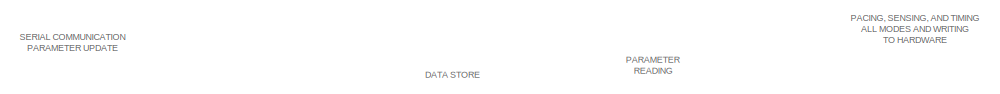
[diagram: root canvas - part 1/6, top right region]
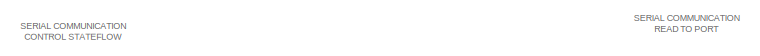
[diagram: root canvas - part 2/6, top left region]
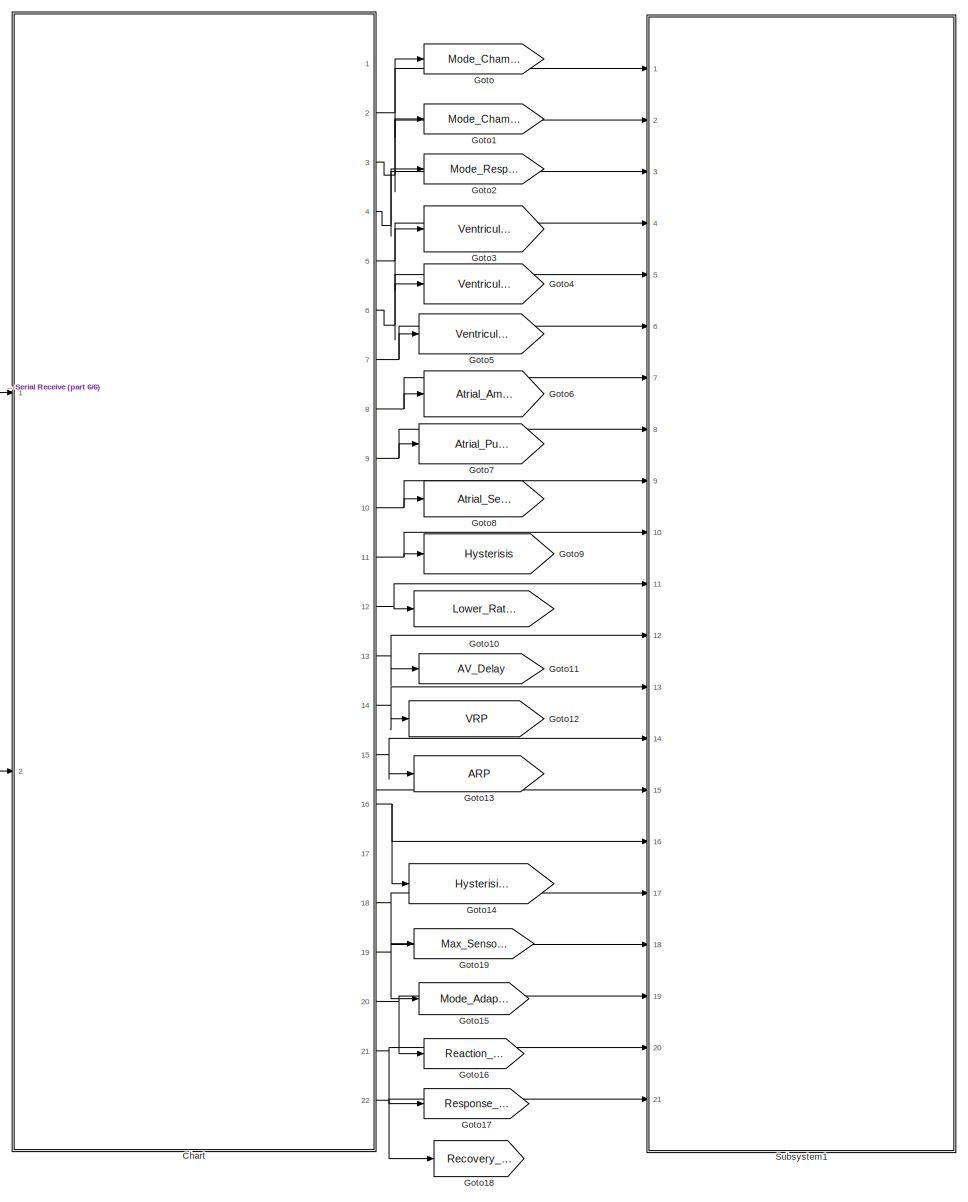
[diagram: root canvas - part 3/6, left side, full height]
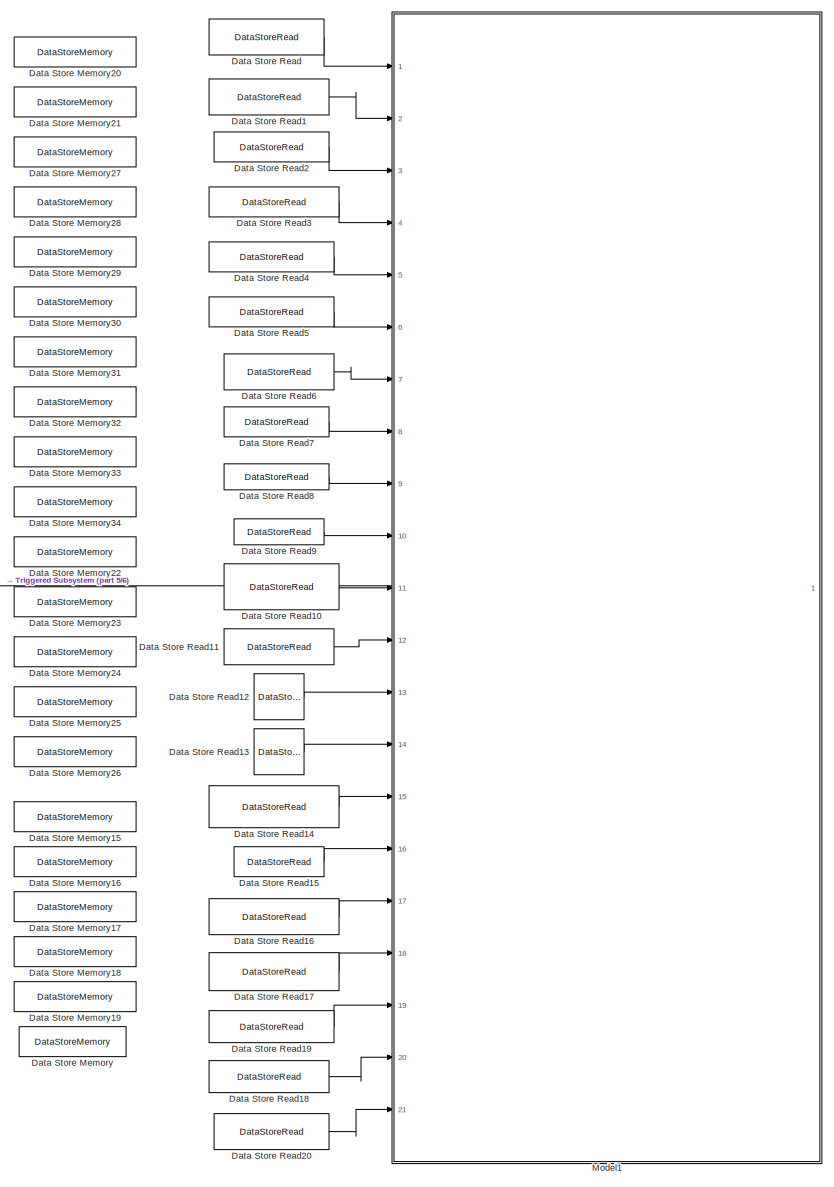
[diagram: root canvas - part 4/6, right side, full height]
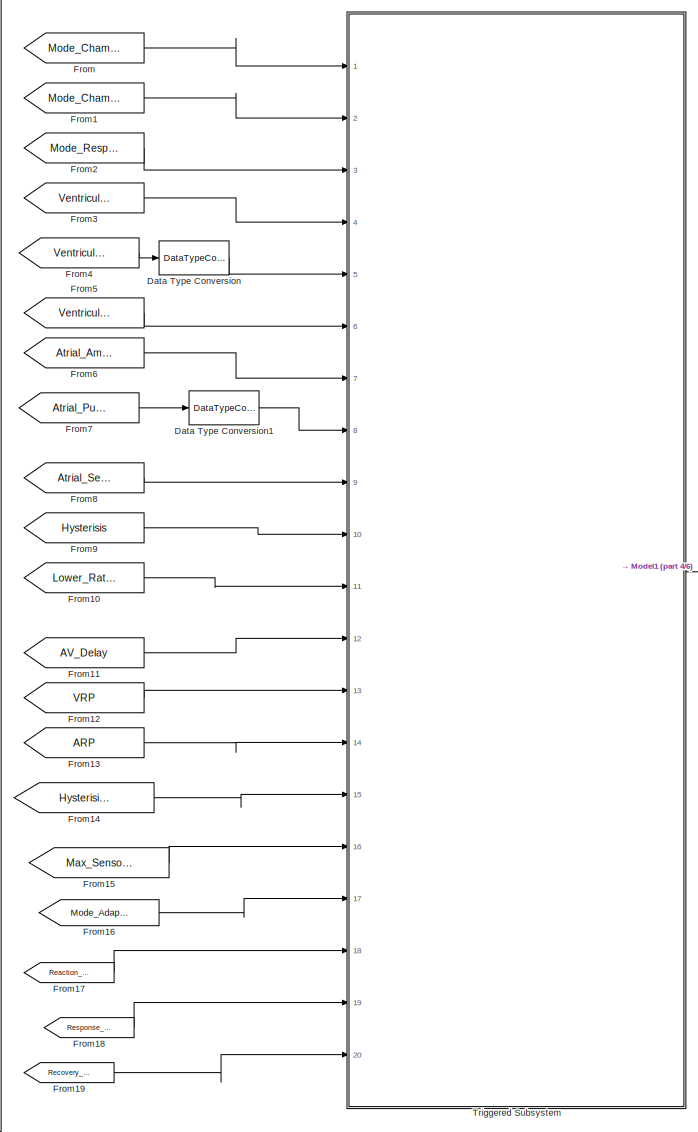
[diagram: root canvas - part 5/6, center side, full height]
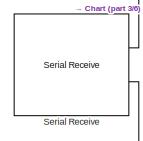
[diagram: root canvas - part 6/6, middle left region]
MODEL slx_df2ec60de8db
KIND model
CONFIG AbsTol = auto
CONFIG EnableMultiTasking = on
CONFIG FixedStep = 1e-3
CONFIG MaxStep = auto
CONFIG MinStep = auto
CONFIG RelTol = 1e-3
CONFIG SampleTimeConstraint = Unconstrained
CONFIG Solver = FixedStepAuto
CONFIG SolverName = FixedStepAuto
CONFIG StartTime = 0.0
CONFIG StopTime = inf
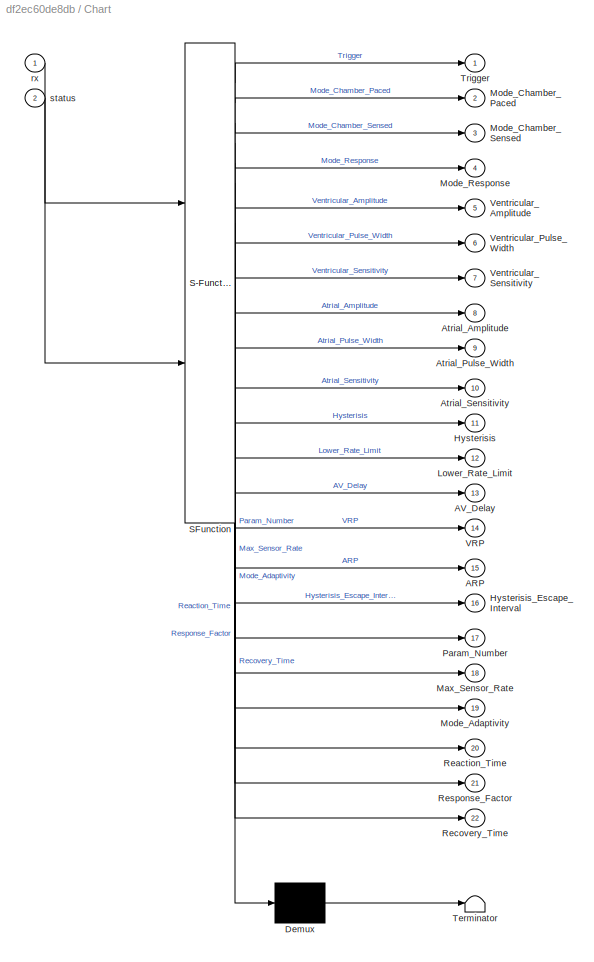
BLOCK [SubSystem] Chart
  ErrorFcn = Stateflow.Translate.translate
  PermitHierarchicalResolution = ExplicitOnly
  PortSchema = {"entries":[{"content":{"sides":[{"content":{"connectorIds":["In1","In2"]},"type":"ConnectorPlacement.EquallySpacedRectSide","uuid":"5d6148fe-63ad-4e41-a469-0ccea700ff5c"},{"content":{"connectorIds":["Out2","Out3","Out4","Out5","Out6","Out7","Out8","Out9","Out10","Out11","Out12","Out13","Out14","Out15","Out17","Out16","Out18","Out19","Out20","Out21","Out22"],"side":"RIGHT"},"type":"ConnectorPlacem...<+407ch>
  Ports = [2, 22]
  RequestExecContextInheritance = off
  SFBlockType = Chart
  TreatAsAtomicUnit = on
BLOCK [Demux] Chart/ Demux 
  Outputs = 1
  Ports = [1, 1]
BLOCK [S-Function] Chart/ SFunction 
  EnableBusSupport = on
  FunctionName = sf_sfun
  PortCounts = [2 23]
  Ports = [2, 23]
  SFcnIsStateOwnerBlock = off
  SFunctionDeploymentMode = off
  Tag = Stateflow S-Function 8
BLOCK [Terminator] Chart/ Terminator 
BLOCK [Outport] Chart/ARP
  Port = 15
BLOCK [Outport] Chart/AV_Delay
  Port = 13
BLOCK [Outport] Chart/Atrial_Amplitude
  Port = 8
BLOCK [Outport] Chart/Atrial_Pulse_Width
  Port = 9
BLOCK [Outport] Chart/Atrial_Sensitivity
  Port = 10
BLOCK [Outport] Chart/Hysterisis
  Port = 11
BLOCK [Outport] Chart/Hysterisis_Escape_Interval
  Port = 16
BLOCK [Outport] Chart/Lower_Rate_Limit
  Port = 12
BLOCK [Outport] Chart/Max_Sensor_Rate
  Port = 18
BLOCK [Outport] Chart/Mode_Adaptivity
  Port = 19
BLOCK [Outport] Chart/Mode_Chamber_Paced
  Port = 2
BLOCK [Outport] Chart/Mode_Chamber_Sensed
  Port = 3
BLOCK [Outport] Chart/Mode_Response
  Port = 4
BLOCK [Outport] Chart/Param_Number
  Port = 17
BLOCK [Outport] Chart/Reaction_Time
  Port = 20
BLOCK [Outport] Chart/Recovery_Time
  Port = 22
BLOCK [Outport] Chart/Response_Factor
  Port = 21
BLOCK [Outport] Chart/Trigger
BLOCK [Outport] Chart/VRP
  Port = 14
BLOCK [Outport] Chart/Ventricular_Amplitude
  Port = 5
BLOCK [Outport] Chart/Ventricular_Pulse_Width
  Port = 6
BLOCK [Outport] Chart/Ventricular_Sensitivity
  Port = 7
BLOCK [Inport] Chart/rx
BLOCK [Inport] Chart/status
  Port = 2
BLOCK [DataStoreMemory] Data Store Memory
  DataStoreName = Smoothed_Acceleration
  ReadBeforeWriteMsg = warning
  ShowAdditionalParam = off
  WriteAfterReadMsg = warning
  WriteAfterWriteMsg = warning
BLOCK [DataStoreMemory] Data Store Memory15
  DataStoreName = Max_Sensor_Rate
  ReadBeforeWriteMsg = warning
  ShowAdditionalParam = off
  WriteAfterReadMsg = warning
  WriteAfterWriteMsg = warning
BLOCK [DataStoreMemory] Data Store Memory16
  DataStoreName = Mode_Adaptivity
  ReadBeforeWriteMsg = warning
  ShowAdditionalParam = off
  WriteAfterReadMsg = warning
  WriteAfterWriteMsg = warning
BLOCK [DataStoreMemory] Data Store Memory17
  DataStoreName = Reaction_Time
  ReadBeforeWriteMsg = warning
  ShowAdditionalParam = off
  WriteAfterReadMsg = warning
  WriteAfterWriteMsg = warning
BLOCK [DataStoreMemory] Data Store Memory18
  DataStoreName = Response_Factor
  ReadBeforeWriteMsg = warning
  ShowAdditionalParam = off
  WriteAfterReadMsg = warning
  WriteAfterWriteMsg = warning
BLOCK [DataStoreMemory] Data Store Memory19
  DataStoreName = Recovery_Time
  ReadBeforeWriteMsg = warning
  ShowAdditionalParam = off
  WriteAfterReadMsg = warning
  WriteAfterWriteMsg = warning
BLOCK [DataStoreMemory] Data Store Memory20
  DataStoreName = Mode_Chamber_Paced
  ReadBeforeWriteMsg = warning
  ShowAdditionalParam = off
  WriteAfterReadMsg = warning
  WriteAfterWriteMsg = warning
BLOCK [DataStoreMemory] Data Store Memory21
  DataStoreName = Mode_Chamber_Sensed
  ReadBeforeWriteMsg = warning
  ShowAdditionalParam = off
  WriteAfterReadMsg = warning
  WriteAfterWriteMsg = warning
BLOCK [DataStoreMemory] Data Store Memory22
  DataStoreName = Lower_Rate_Limit
  ReadBeforeWriteMsg = warning
  ShowAdditionalParam = off
  WriteAfterReadMsg = warning
  WriteAfterWriteMsg = warning
BLOCK [DataStoreMemory] Data Store Memory23
  DataStoreName = AV_Delay
  ReadBeforeWriteMsg = warning
  ShowAdditionalParam = off
  WriteAfterReadMsg = warning
  WriteAfterWriteMsg = warning
BLOCK [DataStoreMemory] Data Store Memory24
  DataStoreName = VRP
  ReadBeforeWriteMsg = warning
  ShowAdditionalParam = off
  WriteAfterReadMsg = warning
  WriteAfterWriteMsg = warning
BLOCK [DataStoreMemory] Data Store Memory25
  DataStoreName = ARP
  ReadBeforeWriteMsg = warning
  ShowAdditionalParam = off
  WriteAfterReadMsg = warning
  WriteAfterWriteMsg = warning
BLOCK [DataStoreMemory] Data Store Memory26
  DataStoreName = Hysterisis_Escape_Interval
  ReadBeforeWriteMsg = warning
  ShowAdditionalParam = off
  WriteAfterReadMsg = warning
  WriteAfterWriteMsg = warning
BLOCK [DataStoreMemory] Data Store Memory27
  DataStoreName = Mode_Response
  ReadBeforeWriteMsg = warning
  ShowAdditionalParam = off
  WriteAfterReadMsg = warning
  WriteAfterWriteMsg = warning
BLOCK [DataStoreMemory] Data Store Memory28
  DataStoreName = Ventricular_Amplitude
  ReadBeforeWriteMsg = warning
  ShowAdditionalParam = off
  WriteAfterReadMsg = warning
  WriteAfterWriteMsg = warning
BLOCK [DataStoreMemory] Data Store Memory29
  DataStoreName = Ventricular_Pulse_Width
  ReadBeforeWriteMsg = warning
  ShowAdditionalParam = off
  WriteAfterReadMsg = warning
  WriteAfterWriteMsg = warning
BLOCK [DataStoreMemory] Data Store Memory30
  DataStoreName = Ventricular_Sensitivity
  NameLocation = right
  ReadBeforeWriteMsg = warning
  ShowAdditionalParam = off
  WriteAfterReadMsg = warning
  WriteAfterWriteMsg = warning
BLOCK [DataStoreMemory] Data Store Memory31
  DataStoreName = Atrial_Amplitude
  ReadBeforeWriteMsg = warning
  ShowAdditionalParam = off
  WriteAfterReadMsg = warning
  WriteAfterWriteMsg = warning
BLOCK [DataStoreMemory] Data Store Memory32
  DataStoreName = Atrial_Pulse_Width
  ReadBeforeWriteMsg = warning
  ShowAdditionalParam = off
  WriteAfterReadMsg = warning
  WriteAfterWriteMsg = warning
BLOCK [DataStoreMemory] Data Store Memory33
  DataStoreName = Atrial_Sensitivity
  ReadBeforeWriteMsg = warning
  ShowAdditionalParam = off
  WriteAfterReadMsg = warning
  WriteAfterWriteMsg = warning
BLOCK [DataStoreMemory] Data Store Memory34
  DataStoreName = Hysterisis
  ReadBeforeWriteMsg = warning
  ShowAdditionalParam = off
  WriteAfterReadMsg = warning
  WriteAfterWriteMsg = warning
BLOCK [DataStoreRead] Data Store Read
  DataStoreName = Mode_Chamber_Paced
  Ports = [0, 1]
BLOCK [DataStoreRead] Data Store Read1
  DataStoreName = Mode_Chamber_Sensed
  Ports = [0, 1]
BLOCK [DataStoreRead] Data Store Read10
  DataStoreName = Lower_Rate_Limit
  Ports = [0, 1]
BLOCK [DataStoreRead] Data Store Read11
  DataStoreName = AV_Delay
  Ports = [0, 1]
BLOCK [DataStoreRead] Data Store Read12
  DataStoreName = VRP
  Ports = [0, 1]
BLOCK [DataStoreRead] Data Store Read13
  DataStoreName = ARP
  Ports = [0, 1]
BLOCK [DataStoreRead] Data Store Read14
  DataStoreName = Hysterisis_Escape_Interval
  Ports = [0, 1]
BLOCK [DataStoreRead] Data Store Read15
  DataStoreName = Max_Sensor_Rate
  Ports = [0, 1]
BLOCK [DataStoreRead] Data Store Read16
  DataStoreName = Mode_Adaptivity
  Ports = [0, 1]
BLOCK [DataStoreRead] Data Store Read17
  DataStoreName = Reaction_Time
  Ports = [0, 1]
BLOCK [DataStoreRead] Data Store Read18
  DataStoreName = Recovery_Time
  Ports = [0, 1]
BLOCK [DataStoreRead] Data Store Read19
  DataStoreName = Response_Factor
  Ports = [0, 1]
BLOCK [DataStoreRead] Data Store Read2
  DataStoreName = Mode_Response
  Ports = [0, 1]
BLOCK [DataStoreRead] Data Store Read20
  DataStoreName = Smoothed_Acceleration
  Ports = [0, 1]
BLOCK [DataStoreRead] Data Store Read3
  DataStoreName = Ventricular_Amplitude
  Ports = [0, 1]
BLOCK [DataStoreRead] Data Store Read4
  DataStoreName = Ventricular_Pulse_Width
  Ports = [0, 1]
BLOCK [DataStoreRead] Data Store Read5
  DataStoreName = Ventricular_Sensitivity
  Ports = [0, 1]
BLOCK [DataStoreRead] Data Store Read6
  DataStoreName = Atrial_Amplitude
  Ports = [0, 1]
BLOCK [DataStoreRead] Data Store Read7
  DataStoreName = Atrial_Pulse_Width
  Ports = [0, 1]
BLOCK [DataStoreRead] Data Store Read8
  DataStoreName = Atrial_Sensitivity
  Ports = [0, 1]
BLOCK [DataStoreRead] Data Store Read9
  DataStoreName = Hysterisis
  Ports = [0, 1]
BLOCK [DataTypeConversion] Data Type Conversion
  OutDataTypeStr = uint16
  RndMeth = Floor
  SaturateOnIntegerOverflow = off
BLOCK [DataTypeConversion] Data Type Conversion1
  OutDataTypeStr = uint16
  RndMeth = Floor
  SaturateOnIntegerOverflow = off
BLOCK [From] From
  GotoTag = Mode_Chamber_Paced
  TagVisibility = global
BLOCK [From] From1
  GotoTag = Mode_Chamber_Sensed
BLOCK [From] From10
  GotoTag = Lower_Rate_Limit
BLOCK [From] From11
  GotoTag = AV_Delay
BLOCK [From] From12
  GotoTag = VRP
BLOCK [From] From13
  GotoTag = ARP
BLOCK [From] From14
  GotoTag = Hysterisis_Escape_Interval
BLOCK [From] From15
  GotoTag = Max_Sensor_Rate
BLOCK [From] From16
  GotoTag = Mode_Adaptivity
BLOCK [From] From17
  GotoTag = Reaction_Time
BLOCK [From] From18
  GotoTag = Response_Factor
BLOCK [From] From19
  GotoTag = Recovery_Time
BLOCK [From] From2
  GotoTag = Mode_Response
BLOCK [From] From3
  GotoTag = Ventricular_Amplitude
BLOCK [From] From4
  GotoTag = Ventricular_Pulse_Width
BLOCK [From] From5
  GotoTag = Ventricular_Sensitivity
BLOCK [From] From6
  GotoTag = Atrial_Amplitude
BLOCK [From] From7
  GotoTag = Atrial_Pulse_Width
BLOCK [From] From8
  GotoTag = Atrial_Sensitivity
BLOCK [From] From9
  GotoTag = Hysterisis
BLOCK [Goto] Goto
  GotoTag = Mode_Chamber_Paced
  TagVisibility = global
BLOCK [Goto] Goto1
  GotoTag = Mode_Chamber_Sensed
BLOCK [Goto] Goto10
  GotoTag = Lower_Rate_Limit
BLOCK [Goto] Goto11
  GotoTag = AV_Delay
BLOCK [Goto] Goto12
  GotoTag = VRP
BLOCK [Goto] Goto13
  GotoTag = ARP
BLOCK [Goto] Goto14
  GotoTag = Hysterisis_Escape_Interval
BLOCK [Goto] Goto15
  GotoTag = Mode_Adaptivity
BLOCK [Goto] Goto16
  GotoTag = Reaction_Time
BLOCK [Goto] Goto17
  GotoTag = Response_Factor
BLOCK [Goto] Goto18
  GotoTag = Recovery_Time
BLOCK [Goto] Goto19
  GotoTag = Max_Sensor_Rate
BLOCK [Goto] Goto2
  GotoTag = Mode_Response
BLOCK [Goto] Goto3
  GotoTag = Ventricular_Amplitude
BLOCK [Goto] Goto4
  GotoTag = Ventricular_Pulse_Width
BLOCK [Goto] Goto5
  GotoTag = Ventricular_Sensitivity
BLOCK [Goto] Goto6
  GotoTag = Atrial_Amplitude
BLOCK [Goto] Goto7
  GotoTag = Atrial_Pulse_Width
BLOCK [Goto] Goto8
  GotoTag = Atrial_Sensitivity
BLOCK [Goto] Goto9
  GotoTag = Hysterisis
BLOCK [ModelReference] Model1
  ModelNameDialog = PTHS.slx
  ModelReferenceVersion = 1.35
  PortSchema = {"entries":[{"content":{"sides":[{"content":{"connectorIds":["In1","In2","In3","In4","In5","In6","In7","In8","In9","In10","In11","In12","In13","In14","In15","In16","In17","In18","In19","In20","In21"]},"type":"ConnectorPlacement.EquallySpacedRectSide","uuid":"589ed8b8-76bd-4f54-af86-3c44c90fe378"},{"content":{"connectorIds":[],"side":"RIGHT"},"type":"ConnectorPlacement.EquallySpacedRectSide","uuid"...<+374ch>
  Ports = [21, 1]
BLOCK [Reference] Serial Receive  REF=frdmk64flib/Serial Receive
  Ports = [0, 2]
  SourceBlock = frdmk64flib/Serial Receive
  SourceProductBaseCode = EC_FRDM_K64F
  SourceType = freedomk64f.SCIRead
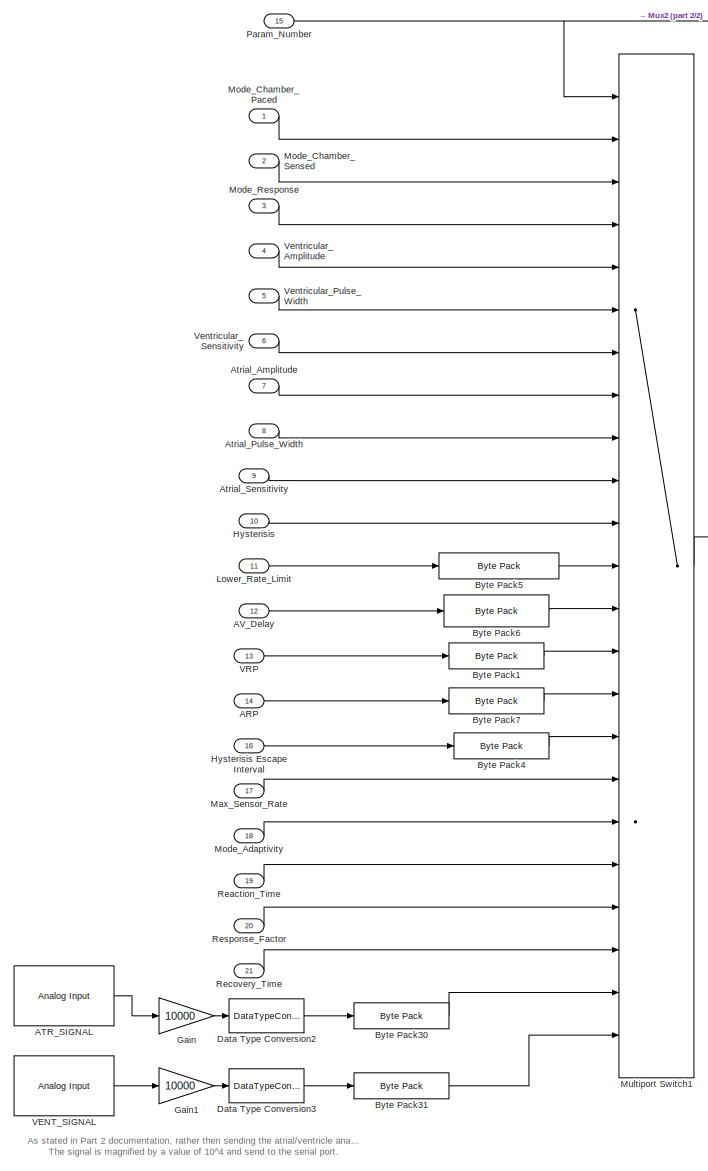
[diagram: Subsystem1 - part 1/2, left side, full height]
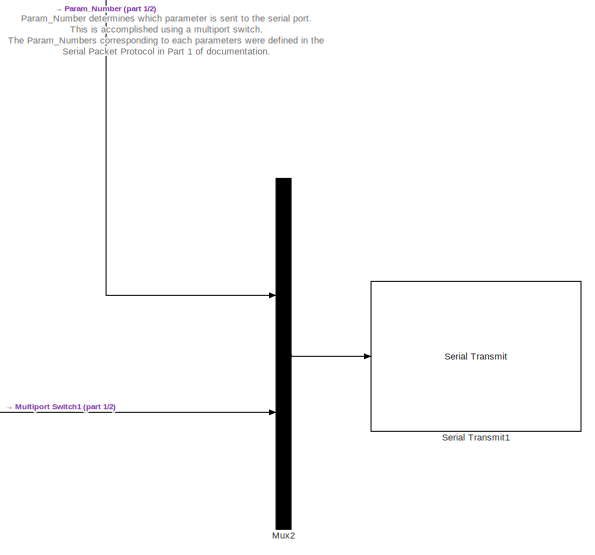
[diagram: Subsystem1 - part 2/2, middle right region]
BLOCK [SubSystem] Subsystem1
  Ports = [21]
  RequestExecContextInheritance = off
BLOCK [Inport] Subsystem1/ARP
  Port = 14
BLOCK [Reference] Subsystem1/ATR_SIGNAL  REF=frdmk64flib/Analog Input
  Ports = [0, 1]
  SourceBlock = frdmk64flib/Analog Input
  SourceProductBaseCode = EC_FRDM_K64F
  SourceType = freedomk64f.AnalogInput
BLOCK [Inport] Subsystem1/AV_Delay
  Port = 12
BLOCK [Inport] Subsystem1/Atrial_Amplitude
  Port = 7
BLOCK [Inport] Subsystem1/Atrial_Pulse_Width
  Port = 8
BLOCK [Inport] Subsystem1/Atrial_Sensitivity
  Port = 9
BLOCK [Reference] Subsystem1/Byte Pack1  REF=etargetslib/Byte Pack
  Ports = [1, 1]
  SourceBlock = etargetslib/Byte Pack
  SourceProductBaseCode = ME
  SourceType = Byte pack
BLOCK [Reference] Subsystem1/Byte Pack30  REF=etargetslib/Byte Pack
  Ports = [1, 1]
  SourceBlock = etargetslib/Byte Pack
  SourceProductBaseCode = ME
  SourceType = Byte pack
BLOCK [Reference] Subsystem1/Byte Pack31  REF=etargetslib/Byte Pack
  Ports = [1, 1]
  SourceBlock = etargetslib/Byte Pack
  SourceProductBaseCode = ME
  SourceType = Byte pack
BLOCK [Reference] Subsystem1/Byte Pack4  REF=etargetslib/Byte Pack
  Ports = [1, 1]
  SourceBlock = etargetslib/Byte Pack
  SourceProductBaseCode = ME
  SourceType = Byte pack
BLOCK [Reference] Subsystem1/Byte Pack5  REF=etargetslib/Byte Pack
  Ports = [1, 1]
  SourceBlock = etargetslib/Byte Pack
  SourceProductBaseCode = ME
  SourceType = Byte pack
BLOCK [Reference] Subsystem1/Byte Pack6  REF=etargetslib/Byte Pack
  Ports = [1, 1]
  SourceBlock = etargetslib/Byte Pack
  SourceProductBaseCode = ME
  SourceType = Byte pack
BLOCK [Reference] Subsystem1/Byte Pack7  REF=etargetslib/Byte Pack
  Ports = [1, 1]
  SourceBlock = etargetslib/Byte Pack
  SourceProductBaseCode = ME
  SourceType = Byte pack
BLOCK [DataTypeConversion] Subsystem1/Data Type Conversion2
  OutDataTypeStr = uint16
  RndMeth = Floor
  SaturateOnIntegerOverflow = off
BLOCK [DataTypeConversion] Subsystem1/Data Type Conversion3
  OutDataTypeStr = uint16
  RndMeth = Floor
  SaturateOnIntegerOverflow = off
BLOCK [Gain] Subsystem1/Gain
  Gain = 10000
BLOCK [Gain] Subsystem1/Gain1
  Gain = 10000
BLOCK [Inport] Subsystem1/Hysterisis
  Port = 10
BLOCK [Inport] Subsystem1/Hysterisis Escape Interval
  Port = 16
BLOCK [Inport] Subsystem1/Lower_Rate_Limit
  Port = 11
BLOCK [Inport] Subsystem1/Max_Sensor_Rate
  Port = 17
BLOCK [Inport] Subsystem1/Mode_Adaptivity
  Port = 18
BLOCK [Inport] Subsystem1/Mode_Chamber_Paced
BLOCK [Inport] Subsystem1/Mode_Chamber_Sensed
  Port = 2
BLOCK [Inport] Subsystem1/Mode_Response
  Port = 3
BLOCK [MultiPortSwitch] Subsystem1/Multiport Switch1
  InputSameDT = off
  Inputs = 22
  Ports = [23, 1]
  SaturateOnIntegerOverflow = off
BLOCK [Mux] Subsystem1/Mux2
  DisplayOption = bar
  Inputs = 2
  Ports = [2, 1]
BLOCK [Inport] Subsystem1/Param_Number
  Port = 15
BLOCK [Inport] Subsystem1/Reaction_Time
  Port = 19
BLOCK [Inport] Subsystem1/Recovery_Time
  Port = 21
BLOCK [Inport] Subsystem1/Response_Factor
  Port = 20
BLOCK [Reference] Subsystem1/Serial Transmit1  REF=frdmk64flib/Serial Transmit
  Ports = [1]
  SourceBlock = frdmk64flib/Serial Transmit
  SourceProductBaseCode = EC_FRDM_K64F
  SourceType = freedomk64f.SCIWrite
BLOCK [Reference] Subsystem1/VENT_SIGNAL  REF=frdmk64flib/Analog Input
  Ports = [0, 1]
  SourceBlock = frdmk64flib/Analog Input
  SourceProductBaseCode = EC_FRDM_K64F
  SourceType = freedomk64f.AnalogInput
BLOCK [Inport] Subsystem1/VRP
  Port = 13
BLOCK [Inport] Subsystem1/Ventricular_Amplitude
  Port = 4
BLOCK [Inport] Subsystem1/Ventricular_Pulse_Width
  Port = 5
BLOCK [Inport] Subsystem1/Ventricular_Sensitivity
  Port = 6
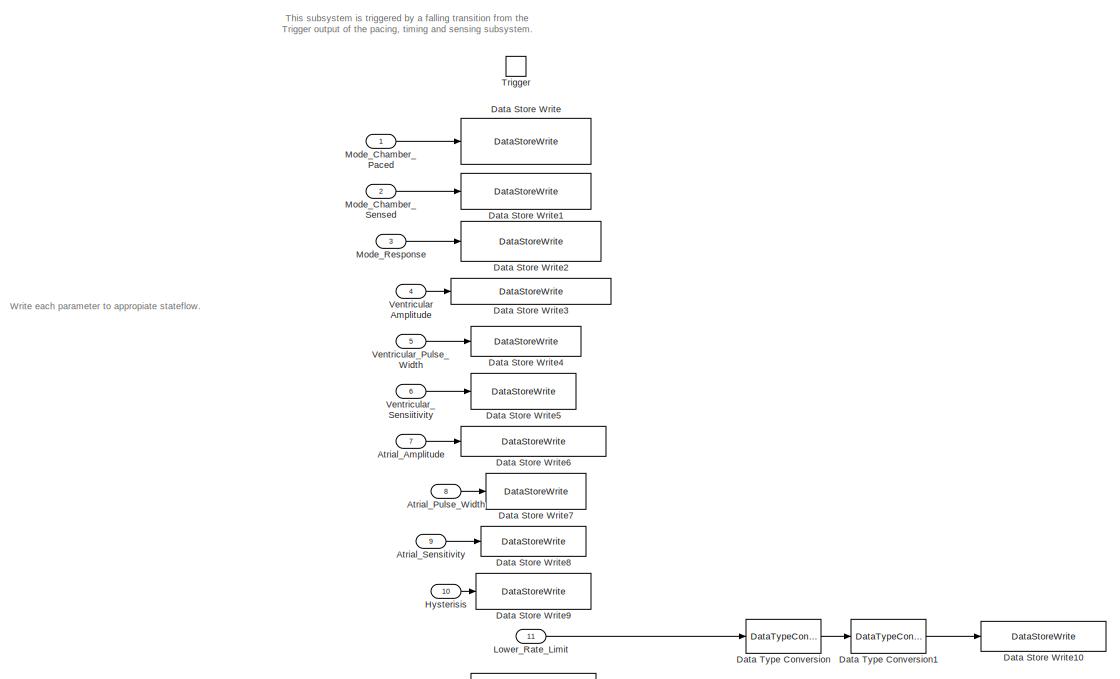
[diagram: Triggered Subsystem - part 1/2, full width, top band]
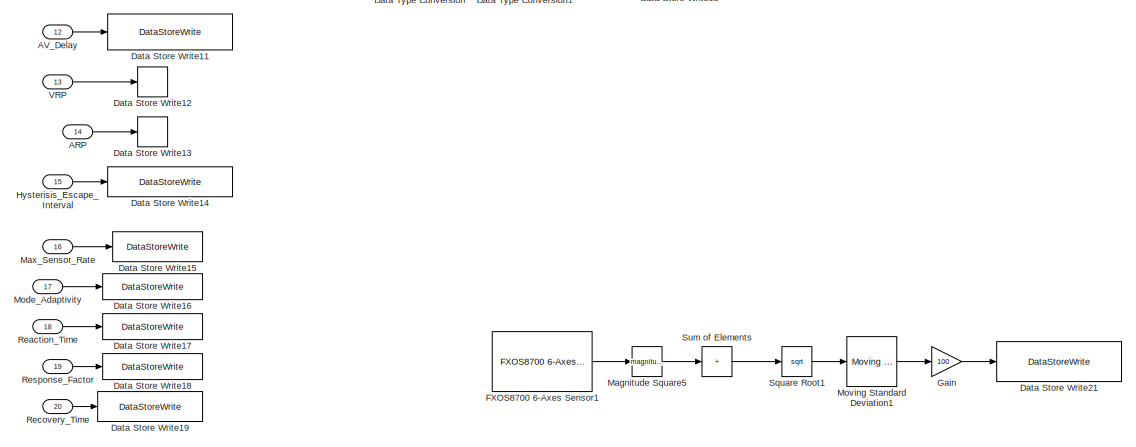
[diagram: Triggered Subsystem - part 2/2, full width, bottom band]
BLOCK [SubSystem] Triggered Subsystem
  Ports = [20, 0, 0, 1]
  RequestExecContextInheritance = off
  TreatAsAtomicUnit = on
BLOCK [Inport] Triggered Subsystem/ARP
  Port = 14
BLOCK [Inport] Triggered Subsystem/AV_Delay
  Port = 12
BLOCK [Inport] Triggered Subsystem/Atrial_Amplitude
  Port = 7
BLOCK [Inport] Triggered Subsystem/Atrial_Pulse_Width
  Port = 8
BLOCK [Inport] Triggered Subsystem/Atrial_Sensitivity
  NameLocation = top
  Port = 9
BLOCK [DataStoreWrite] Triggered Subsystem/Data Store Write
  DataStoreName = Mode_Chamber_Paced
  Ports = [1]
BLOCK [DataStoreWrite] Triggered Subsystem/Data Store Write1
  DataStoreName = Mode_Chamber_Sensed
  Ports = [1]
BLOCK [DataStoreWrite] Triggered Subsystem/Data Store Write10
  DataStoreName = Lower_Rate_Limit
  Ports = [1]
BLOCK [DataStoreWrite] Triggered Subsystem/Data Store Write11
  DataStoreName = AV_Delay
  Ports = [1]
BLOCK [DataStoreWrite] Triggered Subsystem/Data Store Write12
  DataStoreName = VRP
  Ports = [1]
BLOCK [DataStoreWrite] Triggered Subsystem/Data Store Write13
  DataStoreName = ARP
  Ports = [1]
BLOCK [DataStoreWrite] Triggered Subsystem/Data Store Write14
  DataStoreName = Hysterisis_Escape_Interval
  Ports = [1]
BLOCK [DataStoreWrite] Triggered Subsystem/Data Store Write15
  DataStoreName = Max_Sensor_Rate
  Ports = [1]
BLOCK [DataStoreWrite] Triggered Subsystem/Data Store Write16
  DataStoreName = Mode_Adaptivity
  Ports = [1]
BLOCK [DataStoreWrite] Triggered Subsystem/Data Store Write17
  DataStoreName = Reaction_Time
  Ports = [1]
BLOCK [DataStoreWrite] Triggered Subsystem/Data Store Write18
  DataStoreName = Response_Factor
  Ports = [1]
BLOCK [DataStoreWrite] Triggered Subsystem/Data Store Write19
  DataStoreName = Recovery_Time
  Ports = [1]
BLOCK [DataStoreWrite] Triggered Subsystem/Data Store Write2
  DataStoreName = Mode_Response
  Ports = [1]
BLOCK [DataStoreWrite] Triggered Subsystem/Data Store Write21
  DataStoreName = Smoothed_Acceleration
  Ports = [1]
BLOCK [DataStoreWrite] Triggered Subsystem/Data Store Write3
  DataStoreName = Ventricular_Amplitude
  Ports = [1]
BLOCK [DataStoreWrite] Triggered Subsystem/Data Store Write4
  DataStoreName = Ventricular_Pulse_Width
  Ports = [1]
BLOCK [DataStoreWrite] Triggered Subsystem/Data Store Write5
  DataStoreName = Ventricular_Sensitivity
  Ports = [1]
BLOCK [DataStoreWrite] Triggered Subsystem/Data Store Write6
  DataStoreName = Atrial_Amplitude
  Ports = [1]
BLOCK [DataStoreWrite] Triggered Subsystem/Data Store Write7
  DataStoreName = Atrial_Pulse_Width
  Ports = [1]
BLOCK [DataStoreWrite] Triggered Subsystem/Data Store Write8
  DataStoreName = Atrial_Sensitivity
  Ports = [1]
BLOCK [DataStoreWrite] Triggered Subsystem/Data Store Write9
  DataStoreName = Hysterisis
  Ports = [1]
BLOCK [DataTypeConversion] Triggered Subsystem/Data Type Conversion
  OutDataTypeStr = double
  RndMeth = Floor
  SaturateOnIntegerOverflow = off
BLOCK [DataTypeConversion] Triggered Subsystem/Data Type Conversion1
  OutDataTypeStr = uint16
  RndMeth = Floor
  SaturateOnIntegerOverflow = off
BLOCK [Reference] Triggered Subsystem/FXOS8700 6-Axes Sensor1  REF=frdmk64flib/FXOS8700 6-Axes Sensor
  Ports = [0, 1]
  SourceBlock = frdmk64flib/FXOS8700 6-Axes Sensor
  SourceProductBaseCode = EC_FRDM_K64F
  SourceType = freedomk64f.fxos8700
BLOCK [Gain] Triggered Subsystem/Gain
  Gain = 100
BLOCK [Inport] Triggered Subsystem/Hysterisis
  Port = 10
BLOCK [Inport] Triggered Subsystem/Hysterisis_Escape_Interval
  Port = 15
BLOCK [Inport] Triggered Subsystem/Lower_Rate_Limit
  Port = 11
BLOCK [Math] Triggered Subsystem/Magnitude Square5
  Operator = magnitude^2
  Ports = [1, 1]
  RndMeth = Zero
  SignedPower = on
BLOCK [Inport] Triggered Subsystem/Max_Sensor_Rate
  Port = 16
BLOCK [Inport] Triggered Subsystem/Mode_Adaptivity
  Port = 17
BLOCK [Inport] Triggered Subsystem/Mode_Chamber_Paced
BLOCK [Inport] Triggered Subsystem/Mode_Chamber_Sensed
  Port = 2
BLOCK [Inport] Triggered Subsystem/Mode_Response
  Port = 3
BLOCK [Reference] Triggered Subsystem/Moving Standard Deviation1  REF=dspstat3/Moving
Standard
Deviation
  Ports = [1, 1]
  SourceBlock = dspstat3/Moving\nStandard\nDeviation
  SourceProductBaseCode = DS
  SourceType = dsp.simulink.MovingStandardDeviation
BLOCK [Inport] Triggered Subsystem/Reaction_Time
  Port = 18
BLOCK [Inport] Triggered Subsystem/Recovery_Time
  Port = 20
BLOCK [Inport] Triggered Subsystem/Response_Factor
  Port = 19
BLOCK [Sqrt] Triggered Subsystem/Square Root1
BLOCK [Sum] Triggered Subsystem/Sum of Elements
  IconShape = rectangular
  Inputs = +
  Ports = [1, 1]
BLOCK [TriggerPort] Triggered Subsystem/Trigger
  Ports = []
  StatesWhenEnabling = held
  TriggerType = falling
  VariantControl = Variant
BLOCK [Inport] Triggered Subsystem/VRP
  Port = 13
BLOCK [Inport] Triggered Subsystem/Ventricular Amplitude
  Port = 4
BLOCK [Inport] Triggered Subsystem/Ventricular_Pulse_Width
  Port = 5
BLOCK [Inport] Triggered Subsystem/Ventricular_Sensiitivity
  Port = 6
ANNOTATION (root): DATA STORE
ANNOTATION (root): PACING, SENSING, AND TIMING ALL MODES AND WRITING TO HARDWARE
ANNOTATION (root): PARAMETER READING
ANNOTATION (root): SERIAL COMMUNICATION CONTROL STATEFLOW
ANNOTATION (root): SERIAL COMMUNICATION PARAMETER UPDATE
ANNOTATION (root): SERIAL COMMUNICATION READ TO PORT
ANNOTATION Subsystem1: As stated in Part 2 documentation, rather then sending the atrial/ventricle analogue signal as a single or float, The signal is magnified by a value of 10^4 and send to the serial port.
ANNOTATION Subsystem1: Param_Number determines which parameter is sent to the serial port. This is accomplished using a multiport switch. The Param_Numbers corresponding to each parameters were defined in the Serial Packet Protocol in Part 1 of documentation.
ANNOTATION Triggered Subsystem: Write each parameter to appropiate stateflow.
ANNOTATION Triggered Subsystem: This subsystem is triggered by a falling transition from the Trigger output of the pacing, timing and sensing subsystem.
NET Chart:10 -> Goto8:1, Subsystem1:9
NET Chart:11 -> Goto9:1, Subsystem1:10
NET Chart:12 -> Goto10:1, Subsystem1:11
NET Chart:13 -> Goto11:1, Subsystem1:12
NET Chart:14 -> Goto12:1, Subsystem1:13
NET Chart:15 -> Goto13:1, Subsystem1:14
NET Chart:16 -> Goto14:1, Subsystem1:16
LINE Chart:17 -> Subsystem1:15
NET Chart:18 -> Goto19:1, Subsystem1:17
NET Chart:19 -> Goto15:1, Subsystem1:18
NET Chart:2 -> Goto:1, Subsystem1:1
NET Chart:20 -> Goto16:1, Subsystem1:19
NET Chart:21 -> Goto17:1, Subsystem1:20
NET Chart:22 -> Goto18:1, Subsystem1:21
NET Chart:3 -> Goto1:1, Subsystem1:2
NET Chart:4 -> Goto2:1, Subsystem1:3
NET Chart:5 -> Goto3:1, Subsystem1:4
NET Chart:6 -> Goto4:1, Subsystem1:5
NET Chart:7 -> Goto5:1, Subsystem1:6
NET Chart:8 -> Goto6:1, Subsystem1:7
NET Chart:9 -> Goto7:1, Subsystem1:8
LINE Data Store Read10:1 -> Model1:11
LINE Data Store Read11:1 -> Model1:12
LINE Data Store Read12:1 -> Model1:13
LINE Data Store Read13:1 -> Model1:14
LINE Data Store Read14:1 -> Model1:15
LINE Data Store Read15:1 -> Model1:16
LINE Data Store Read16:1 -> Model1:17
LINE Data Store Read17:1 -> Model1:18
LINE Data Store Read18:1 -> Model1:20
LINE Data Store Read19:1 -> Model1:19
LINE Data Store Read1:1 -> Model1:2
LINE Data Store Read20:1 -> Model1:21
LINE Data Store Read2:1 -> Model1:3
LINE Data Store Read3:1 -> Model1:4
LINE Data Store Read4:1 -> Model1:5
LINE Data Store Read5:1 -> Model1:6
LINE Data Store Read6:1 -> Model1:7
LINE Data Store Read7:1 -> Model1:8
LINE Data Store Read8:1 -> Model1:9
LINE Data Store Read9:1 -> Model1:10
LINE Data Store Read:1 -> Model1:1
LINE Data Type Conversion1:1 -> Triggered Subsystem:8
LINE Data Type Conversion:1 -> Triggered Subsystem:5
LINE From10:1 -> Triggered Subsystem:11
LINE From11:1 -> Triggered Subsystem:12
LINE From12:1 -> Triggered Subsystem:13
LINE From13:1 -> Triggered Subsystem:14
LINE From14:1 -> Triggered Subsystem:15
LINE From15:1 -> Triggered Subsystem:16
LINE From16:1 -> Triggered Subsystem:17
LINE From17:1 -> Triggered Subsystem:18
LINE From18:1 -> Triggered Subsystem:19
LINE From19:1 -> Triggered Subsystem:20
LINE From1:1 -> Triggered Subsystem:2
LINE From2:1 -> Triggered Subsystem:3
LINE From3:1 -> Triggered Subsystem:4
LINE From4:1 -> Data Type Conversion:1
LINE From5:1 -> Triggered Subsystem:6
LINE From6:1 -> Triggered Subsystem:7
LINE From7:1 -> Data Type Conversion1:1
LINE From8:1 -> Triggered Subsystem:9
LINE From9:1 -> Triggered Subsystem:10
LINE From:1 -> Triggered Subsystem:1
LINE Model1:1 -> Triggered Subsystem:trigger
LINE Serial Receive:1 -> Chart:1
LINE Serial Receive:2 -> Chart:2
LINE Subsystem1/ARP:1 -> Subsystem1/Byte Pack7:1
LINE Subsystem1/ATR_SIGNAL:1 -> Subsystem1/Gain:1
LINE Subsystem1/AV_Delay:1 -> Subsystem1/Byte Pack6:1
LINE Subsystem1/Atrial_Amplitude:1 -> Subsystem1/Multiport Switch1:8
LINE Subsystem1/Atrial_Pulse_Width:1 -> Subsystem1/Multiport Switch1:9
LINE Subsystem1/Atrial_Sensitivity:1 -> Subsystem1/Multiport Switch1:10
LINE Subsystem1/Byte Pack1:1 -> Subsystem1/Multiport Switch1:14
LINE Subsystem1/Byte Pack30:1 -> Subsystem1/Multiport Switch1:22
LINE Subsystem1/Byte Pack31:1 -> Subsystem1/Multiport Switch1:23
LINE Subsystem1/Byte Pack4:1 -> Subsystem1/Multiport Switch1:16
LINE Subsystem1/Byte Pack5:1 -> Subsystem1/Multiport Switch1:12
LINE Subsystem1/Byte Pack6:1 -> Subsystem1/Multiport Switch1:13
LINE Subsystem1/Byte Pack7:1 -> Subsystem1/Multiport Switch1:15
LINE Subsystem1/Data Type Conversion2:1 -> Subsystem1/Byte Pack30:1
LINE Subsystem1/Data Type Conversion3:1 -> Subsystem1/Byte Pack31:1
LINE Subsystem1/Gain1:1 -> Subsystem1/Data Type Conversion3:1
LINE Subsystem1/Gain:1 -> Subsystem1/Data Type Conversion2:1
LINE Subsystem1/Hysterisis Escape Interval:1 -> Subsystem1/Byte Pack4:1
LINE Subsystem1/Hysterisis:1 -> Subsystem1/Multiport Switch1:11
LINE Subsystem1/Lower_Rate_Limit:1 -> Subsystem1/Byte Pack5:1
LINE Subsystem1/Max_Sensor_Rate:1 -> Subsystem1/Multiport Switch1:17
LINE Subsystem1/Mode_Adaptivity:1 -> Subsystem1/Multiport Switch1:18
LINE Subsystem1/Mode_Chamber_Paced:1 -> Subsystem1/Multiport Switch1:2
LINE Subsystem1/Mode_Chamber_Sensed:1 -> Subsystem1/Multiport Switch1:3
LINE Subsystem1/Mode_Response:1 -> Subsystem1/Multiport Switch1:4
LINE Subsystem1/Multiport Switch1:1 -> Subsystem1/Mux2:2
LINE Subsystem1/Mux2:1 -> Subsystem1/Serial Transmit1:1
NET Subsystem1/Param_Number:1 -> Subsystem1/Multiport Switch1:1, Subsystem1/Mux2:1
LINE Subsystem1/Reaction_Time:1 -> Subsystem1/Multiport Switch1:19
LINE Subsystem1/Recovery_Time:1 -> Subsystem1/Multiport Switch1:21
LINE Subsystem1/Response_Factor:1 -> Subsystem1/Multiport Switch1:20
LINE Subsystem1/VENT_SIGNAL:1 -> Subsystem1/Gain1:1
LINE Subsystem1/VRP:1 -> Subsystem1/Byte Pack1:1
LINE Subsystem1/Ventricular_Amplitude:1 -> Subsystem1/Multiport Switch1:5
LINE Subsystem1/Ventricular_Pulse_Width:1 -> Subsystem1/Multiport Switch1:6
LINE Subsystem1/Ventricular_Sensitivity:1 -> Subsystem1/Multiport Switch1:7
LINE Triggered Subsystem/ARP:1 -> Triggered Subsystem/Data Store Write13:1
LINE Triggered Subsystem/AV_Delay:1 -> Triggered Subsystem/Data Store Write11:1
LINE Triggered Subsystem/Atrial_Amplitude:1 -> Triggered Subsystem/Data Store Write6:1
LINE Triggered Subsystem/Atrial_Pulse_Width:1 -> Triggered Subsystem/Data Store Write7:1
LINE Triggered Subsystem/Atrial_Sensitivity:1 -> Triggered Subsystem/Data Store Write8:1
LINE Triggered Subsystem/Data Type Conversion1:1 -> Triggered Subsystem/Data Store Write10:1
LINE Triggered Subsystem/Data Type Conversion:1 -> Triggered Subsystem/Data Type Conversion1:1
LINE Triggered Subsystem/FXOS8700 6-Axes Sensor1:1 -> Triggered Subsystem/Magnitude Square5:1
LINE Triggered Subsystem/Gain:1 -> Triggered Subsystem/Data Store Write21:1
LINE Triggered Subsystem/Hysterisis:1 -> Triggered Subsystem/Data Store Write9:1
LINE Triggered Subsystem/Hysterisis_Escape_Interval:1 -> Triggered Subsystem/Data Store Write14:1
LINE Triggered Subsystem/Lower_Rate_Limit:1 -> Triggered Subsystem/Data Type Conversion:1
LINE Triggered Subsystem/Magnitude Square5:1 -> Triggered Subsystem/Sum of Elements:1
LINE Triggered Subsystem/Max_Sensor_Rate:1 -> Triggered Subsystem/Data Store Write15:1
LINE Triggered Subsystem/Mode_Adaptivity:1 -> Triggered Subsystem/Data Store Write16:1
LINE Triggered Subsystem/Mode_Chamber_Paced:1 -> Triggered Subsystem/Data Store Write:1
LINE Triggered Subsystem/Mode_Chamber_Sensed:1 -> Triggered Subsystem/Data Store Write1:1
LINE Triggered Subsystem/Mode_Response:1 -> Triggered Subsystem/Data Store Write2:1
LINE Triggered Subsystem/Moving Standard Deviation1:1 -> Triggered Subsystem/Gain:1
LINE Triggered Subsystem/Reaction_Time:1 -> Triggered Subsystem/Data Store Write17:1
LINE Triggered Subsystem/Recovery_Time:1 -> Triggered Subsystem/Data Store Write19:1
LINE Triggered Subsystem/Response_Factor:1 -> Triggered Subsystem/Data Store Write18:1
LINE Triggered Subsystem/Square Root1:1 -> Triggered Subsystem/Moving Standard Deviation1:1
LINE Triggered Subsystem/Sum of Elements:1 -> Triggered Subsystem/Square Root1:1
LINE Triggered Subsystem/VRP:1 -> Triggered Subsystem/Data Store Write12:1
LINE Triggered Subsystem/Ventricular Amplitude:1 -> Triggered Subsystem/Data Store Write3:1
LINE Triggered Subsystem/Ventricular_Pulse_Width:1 -> Triggered Subsystem/Data Store Write4:1
LINE Triggered Subsystem/Ventricular_Sensiitivity:1 -> Triggered Subsystem/Data Store Write5:1
note: NET lines group one-source signal fan-out (src -> all destinations, sorted); 1:1 wires keep LINE
CHART Chart states=5 transitions=9
  STATE_LABEL 'WRITE_PARAMS\nentry:\n%See Serial Protocol section in Part 1 of documentation\n%OFFSET\n%A local variable offset is used to index rx instead of raw numbers\noffset=3;\n%MODES\nMode_Chamber_Paced=rx(offset);\noffset=offset+uint8_bytes;\nMode_Chamber_Sensed=rx(offset);\noffset=offset+uint8_bytes;\nMode_Response=rx(offset);\noffset=offset+uint8_bytes;\n%VENTRICLULAR PACE PARAMS\nVentricular_Amplitude=rx(offset);\no...<+1123ch>'
  STATE_LABEL 'TEST_CODE: 10\nSET_CODE: 20\nECHO_CODE: 30'
  STATE_LABEL 'START_STATE\nentry:\nuint16_bytes = 2;\nuint8_bytes = 1;\nsingle_bytes=4;\n'
  STATE_LABEL 'WAIT_STATE\nentry:\nTrigger = false;\n'
  STATE_LABEL 'READ_PARAMS\nentry:\n%See Serial Protocol section in Part 1 of documentation\nParam_Number=rx(3);\nTrigger = true;\n'
CHART  states=0 transitions=0
